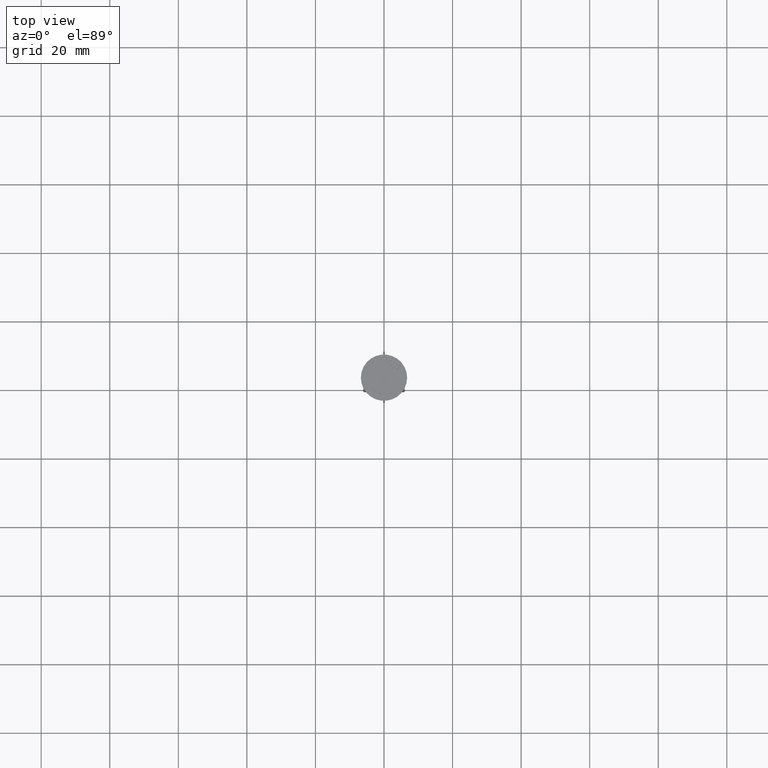
[diagram: clean part render]
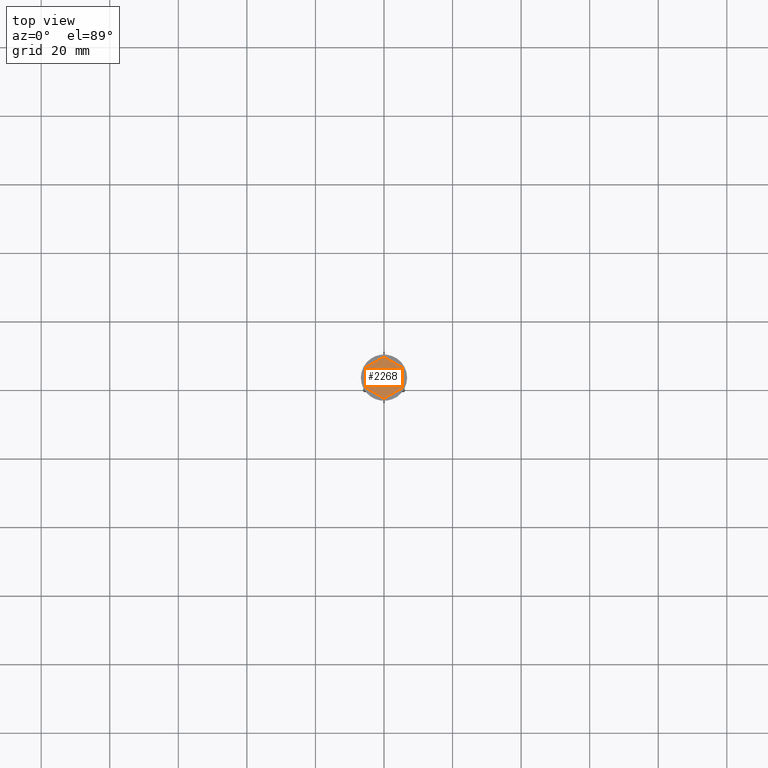
[diagram: same view with one face highlighted and labeled with its STEP entity id]
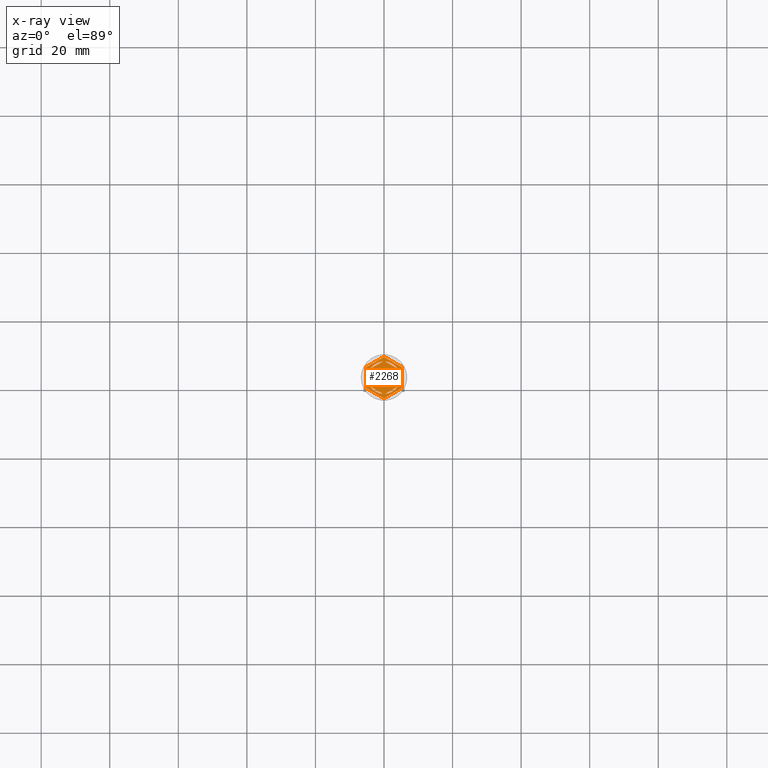
[diagram: x-ray of the same camera — body ghosted, the highlighted face saturated]
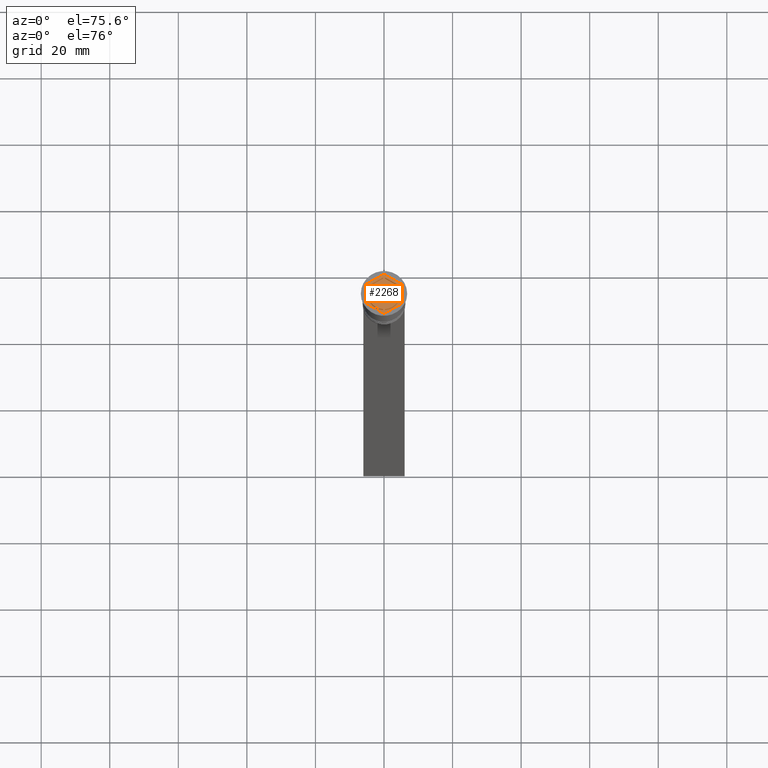
[diagram: same view with one face highlighted and labeled with its STEP entity id]
A machine part, top view. The second image highlights one B-rep face of the part: STEP entity #2268.
The next image is the same camera in x-ray: the body ghosted, the highlighted face saturated — about 0% of this face is hidden behind the body in this view.
A second angle (auxiliary view) of the same face is appended — the face is thin or edge-on in the first view.
In plain terms, the highlighted planar face has unit normal (0, 0, 1).
Its self-contained STEP definition (entity closure, byte-faithful):
#12 = LINE ( 'NONE', #1271, #2137 ) ;
#29 = EDGE_LOOP ( 'NONE', ( #1902, #47 ) ) ;
#42 = CARTESIAN_POINT ( 'NONE',  ( 4.249999999999999112, -2.453738644055910356, -1.000000000000000888 ) ) ;
#47 = ORIENTED_EDGE ( 'NONE', *, *, #877, .F. ) ;
#55 = CARTESIAN_POINT ( 'NONE',  ( 0.000000000000000000, 0.000000000000000000, -1.000000000000000000 ) ) ;
#88 = CARTESIAN_POINT ( 'NONE',  ( -3.962117307087385409, -2.619947794304041899, -1.000000000000000888 ) ) ;
#95 = VECTOR ( 'NONE', #2174, 1000.000000000000000 ) ;
#96 = DIRECTION ( 'NONE',  ( 1.000000000000000000, 0.000000000000000000, 0.000000000000000000 ) ) ;
#97 = FACE_BOUND ( 'NONE', #837, .T. ) ;
#124 = ORIENTED_EDGE ( 'NONE', *, *, #2303, .F. ) ;
#137 = DIRECTION ( 'NONE',  ( 0.000000000000000000, 0.000000000000000000, 1.000000000000000000 ) ) ;
#172 = DIRECTION ( 'NONE',  ( 1.000000000000000000, 0.000000000000000000, 0.000000000000000000 ) ) ;
#195 = EDGE_CURVE ( 'NONE', #2072, #440, #577, .T. ) ;
#211 = EDGE_CURVE ( 'NONE', #1621, #1998, #1857, .T. ) ;
#217 = VERTEX_POINT ( 'NONE', #1331 ) ;
#237 = DIRECTION ( 'NONE',  ( 0.000000000000000000, 1.000000000000000000, 0.000000000000000000 ) ) ;
#244 = DIRECTION ( 'NONE',  ( 0.000000000000000000, 0.000000000000000000, 1.000000000000000000 ) ) ;
#247 = EDGE_CURVE ( 'NONE', #217, #2072, #535, .T. ) ;
#251 = DIRECTION ( 'NONE',  ( 0.000000000000000000, 0.000000000000000000, 1.000000000000000000 ) ) ;
#272 = ORIENTED_EDGE ( 'NONE', *, *, #1885, .T. ) ;
#278 = LINE ( 'NONE', #1180, #354 ) ;
#290 = CARTESIAN_POINT ( 'NONE',  ( 5.250000000000000888, 3.031088913245536087, -1.000000000000000000 ) ) ;
#292 = DIRECTION ( 'NONE',  ( 0.000000000000000000, 1.000000000000000000, 0.000000000000000000 ) ) ;
#296 = FACE_OUTER_BOUND ( 'NONE', #969, .T. ) ;
#317 = CARTESIAN_POINT ( 'NONE',  ( 0.000000000000000000, 0.000000000000000000, -1.000000000000000000 ) ) ;
#322 = ORIENTED_EDGE ( 'NONE', *, *, #430, .T. ) ;
#327 = DIRECTION ( 'NONE',  ( 0.000000000000000000, 0.000000000000000000, 1.000000000000000000 ) ) ;
#348 = ORIENTED_EDGE ( 'NONE', *, *, #1409, .T. ) ;
#351 = VERTEX_POINT ( 'NONE', #648 ) ;
#354 = VECTOR ( 'NONE', #1208, 1000.000000000000227 ) ;
#362 = ORIENTED_EDGE ( 'NONE', *, *, #2318, .F. ) ;
#365 = CARTESIAN_POINT ( 'NONE',  ( 4.249999999999999112, -2.121320343559645938, -1.000000000000000888 ) ) ;
#374 = DIRECTION ( 'NONE',  ( -0.8660254037844385966, 0.4999999999999998890, 0.000000000000000000 ) ) ;
#397 = CIRCLE ( 'NONE', #1657, 4.750000000000000888 ) ;
#418 = EDGE_CURVE ( 'NONE', #2285, #1112, #278, .T. ) ;
#430 = EDGE_CURVE ( 'NONE', #1363, #1290, #2086, .T. ) ;
#440 = VERTEX_POINT ( 'NONE', #1947 ) ;
#441 = CARTESIAN_POINT ( 'NONE',  ( 4.250000000000000000, 2.453738644055910800, -1.000000000000000888 ) ) ;
#468 = VECTOR ( 'NONE', #292, 1000.000000000000000 ) ;
#480 = EDGE_CURVE ( 'NONE', #440, #217, #397, .T. ) ;
#483 = CARTESIAN_POINT ( 'NONE',  ( 0.000000000000000000, 0.000000000000000000, -1.000000000000000000 ) ) ;
#505 = DIRECTION ( 'NONE',  ( 0.000000000000000000, -1.000000000000000000, 0.000000000000000000 ) ) ;
#535 = CIRCLE ( 'NONE', #1854, 4.750000000000000888 ) ;
#541 = CARTESIAN_POINT ( 'NONE',  ( 0.000000000000000000, 0.000000000000000000, -1.000000000000000000 ) ) ;
#542 = EDGE_CURVE ( 'NONE', #1115, #2261, #557, .T. ) ;
#557 = LINE ( 'NONE', #2159, #1042 ) ;
#577 = LINE ( 'NONE', #1680, #645 ) ;
#596 = CARTESIAN_POINT ( 'NONE',  ( 4.249999999999999112, 2.121320343559644162, -1.000000000000000888 ) ) ;
#605 = DIRECTION ( 'NONE',  ( 0.000000000000000000, 0.000000000000000000, 1.000000000000000000 ) ) ;
#617 = DIRECTION ( 'NONE',  ( 1.000000000000000000, 0.000000000000000000, -0.000000000000000000 ) ) ;
#618 = ORIENTED_EDGE ( 'NONE', *, *, #195, .F. ) ;
#620 = DIRECTION ( 'NONE',  ( 0.8660254037844385966, 0.4999999999999999445, 0.000000000000000000 ) ) ;
#645 = VECTOR ( 'NONE', #237, 1000.000000000000000 ) ;
#648 = CARTESIAN_POINT ( 'NONE',  ( -3.962117307087385409, 2.619947794304041899, -1.000000000000000888 ) ) ;
#652 = CARTESIAN_POINT ( 'NONE',  ( -5.250000000000000888, -3.031088913245536087, -1.000000000000000000 ) ) ;
#664 = ORIENTED_EDGE ( 'NONE', *, *, #480, .F. ) ;
#685 = EDGE_CURVE ( 'NONE', #1031, #1726, #745, .T. ) ;
#687 = CARTESIAN_POINT ( 'NONE',  ( -4.250000000000000000, -2.121320343559643717, -1.000000000000000888 ) ) ;
#689 = CARTESIAN_POINT ( 'NONE',  ( -5.250000000000000888, 3.031088913245535643, -1.000000000000000000 ) ) ;
#694 = DIRECTION ( 'NONE',  ( 0.000000000000000000, 0.000000000000000000, 1.000000000000000000 ) ) ;
#712 = AXIS2_PLACEMENT_3D ( 'NONE', #541, #137, #172 ) ;
#730 = VECTOR ( 'NONE', #1352, 1000.000000000000000 ) ;
#734 = DIRECTION ( 'NONE',  ( -0.8660254037844385966, 0.5000000000000001110, 0.000000000000000000 ) ) ;
#745 = CIRCLE ( 'NONE', #1348, 4.750000000000000888 ) ;
#748 = CIRCLE ( 'NONE', #2333, 4.750000000000000888 ) ;
#773 = VERTEX_POINT ( 'NONE', #1756 ) ;
#782 = VECTOR ( 'NONE', #620, 1000.000000000000114 ) ;
#791 = VECTOR ( 'NONE', #826, 1000.000000000000000 ) ;
#796 = ORIENTED_EDGE ( 'NONE', *, *, #1471, .F. ) ;
#798 = FACE_BOUND ( 'NONE', #1138, .T. ) ;
#809 = CARTESIAN_POINT ( 'NONE',  ( 8.729740977282959667E-16, -6.062177826491071286, -1.000000000000000000 ) ) ;
#826 = DIRECTION ( 'NONE',  ( 0.8660254037844387076, -0.4999999999999998335, 0.000000000000000000 ) ) ;
#837 = EDGE_LOOP ( 'NONE', ( #1933, #1320 ) ) ;
#876 = ORIENTED_EDGE ( 'NONE', *, *, #924, .F. ) ;
#877 = EDGE_CURVE ( 'NONE', #351, #773, #1635, .T. ) ;
#924 = EDGE_CURVE ( 'NONE', #2031, #1685, #12, .T. ) ;
#965 = ORIENTED_EDGE ( 'NONE', *, *, #1272, .T. ) ;
#969 = EDGE_LOOP ( 'NONE', ( #965, #972, #272, #1859, #348, #322 ) ) ;
#970 = DIRECTION ( 'NONE',  ( 1.000000000000000000, 0.000000000000000000, 0.000000000000000000 ) ) ;
#972 = ORIENTED_EDGE ( 'NONE', *, *, #418, .T. ) ;
#975 = EDGE_CURVE ( 'NONE', #1998, #1621, #1125, .T. ) ;
#978 = CARTESIAN_POINT ( 'NONE',  ( 8.729740977282959667E-16, -6.062177826491071286, -1.000000000000000000 ) ) ;
#1009 = VECTOR ( 'NONE', #2324, 1000.000000000000000 ) ;
#1031 = VERTEX_POINT ( 'NONE', #1860 ) ;
#1042 = VECTOR ( 'NONE', #1790, 1000.000000000000000 ) ;
#1112 = VERTEX_POINT ( 'NONE', #1234 ) ;
#1115 = VERTEX_POINT ( 'NONE', #652 ) ;
#1125 = CIRCLE ( 'NONE', #1238, 4.750000000000000888 ) ;
#1127 = DIRECTION ( 'NONE',  ( 1.000000000000000000, 0.000000000000000000, 0.000000000000000000 ) ) ;
#1137 = LINE ( 'NONE', #1491, #1875 ) ;
#1138 = EDGE_LOOP ( 'NONE', ( #796, #362 ) ) ;
#1149 = CARTESIAN_POINT ( 'NONE',  ( 0.000000000000000000, 0.000000000000000000, -1.000000000000000000 ) ) ;
#1164 = CARTESIAN_POINT ( 'NONE',  ( 0.000000000000000000, 0.000000000000000000, -1.000000000000000000 ) ) ;
#1180 = CARTESIAN_POINT ( 'NONE',  ( 0.000000000000000000, 6.062177826491072175, -1.000000000000000000 ) ) ;
#1199 = AXIS2_PLACEMENT_3D ( 'NONE', #483, #327, #1752 ) ;
#1204 = EDGE_CURVE ( 'NONE', #773, #351, #748, .T. ) ;
#1208 = DIRECTION ( 'NONE',  ( -0.8660254037844385966, -0.5000000000000000000, 0.000000000000000000 ) ) ;
#1234 = CARTESIAN_POINT ( 'NONE',  ( -5.250000000000000888, 3.031088913245535643, -1.000000000000000000 ) ) ;
#1238 = AXIS2_PLACEMENT_3D ( 'NONE', #1164, #605, #96 ) ;
#1271 = CARTESIAN_POINT ( 'NONE',  ( -4.250000000000000000, -2.453738644055909912, -1.000000000000000888 ) ) ;
#1272 = EDGE_CURVE ( 'NONE', #1290, #2285, #1137, .T. ) ;
#1290 = VERTEX_POINT ( 'NONE', #290 ) ;
#1320 = ORIENTED_EDGE ( 'NONE', *, *, #211, .F. ) ;
#1331 = CARTESIAN_POINT ( 'NONE',  ( -4.750000000000000888, 0.000000000000000000, -1.000000000000000000 ) ) ;
#1339 = CARTESIAN_POINT ( 'NONE',  ( 5.250000000000000888, -3.031088913245536087, -1.000000000000000000 ) ) ;
#1348 = AXIS2_PLACEMENT_3D ( 'NONE', #317, #2311, #1942 ) ;
#1352 = DIRECTION ( 'NONE',  ( -1.767428939690775055E-16, -1.000000000000000000, 0.000000000000000000 ) ) ;
#1363 = VERTEX_POINT ( 'NONE', #1339 ) ;
#1377 = FACE_BOUND ( 'NONE', #2273, .T. ) ;
#1409 = EDGE_CURVE ( 'NONE', #2261, #1363, #1899, .T. ) ;
#1471 = EDGE_CURVE ( 'NONE', #2277, #2087, #1728, .T. ) ;
#1491 = CARTESIAN_POINT ( 'NONE',  ( 5.250000000000000888, 3.031088913245536087, -1.000000000000000000 ) ) ;
#1533 = FACE_BOUND ( 'NONE', #2207, .T. ) ;
#1547 = FACE_BOUND ( 'NONE', #1931, .T. ) ;
#1602 = CARTESIAN_POINT ( 'NONE',  ( -8.673617379884035472E-16, -4.907477288111819824, -1.000000000000000888 ) ) ;
#1621 = VERTEX_POINT ( 'NONE', #596 ) ;
#1635 = LINE ( 'NONE', #2025, #95 ) ;
#1657 = AXIS2_PLACEMENT_3D ( 'NONE', #1796, #694, #2315 ) ;
#1680 = CARTESIAN_POINT ( 'NONE',  ( -4.250000000000000000, 2.453738644055909468, -1.000000000000000888 ) ) ;
#1685 = VERTEX_POINT ( 'NONE', #88 ) ;
#1691 = ORIENTED_EDGE ( 'NONE', *, *, #247, .F. ) ;
#1722 = ORIENTED_EDGE ( 'NONE', *, *, #1829, .F. ) ;
#1726 = VERTEX_POINT ( 'NONE', #1939 ) ;
#1728 = CIRCLE ( 'NONE', #712, 4.750000000000000888 ) ;
#1752 = DIRECTION ( 'NONE',  ( 1.000000000000000000, 0.000000000000000000, 0.000000000000000000 ) ) ;
#1756 = CARTESIAN_POINT ( 'NONE',  ( -0.2878826929126160894, 4.741268137863686505, -1.000000000000000888 ) ) ;
#1790 = DIRECTION ( 'NONE',  ( 0.8660254037844387076, -0.4999999999999998335, 0.000000000000000000 ) ) ;
#1796 = CARTESIAN_POINT ( 'NONE',  ( 0.000000000000000000, 0.000000000000000000, -1.000000000000000000 ) ) ;
#1811 = CARTESIAN_POINT ( 'NONE',  ( 3.962117307087384521, -2.619947794304042787, -1.000000000000000888 ) ) ;
#1813 = VECTOR ( 'NONE', #505, 1000.000000000000000 ) ;
#1829 = EDGE_CURVE ( 'NONE', #1726, #1031, #2237, .T. ) ;
#1854 = AXIS2_PLACEMENT_3D ( 'NONE', #1149, #244, #970 ) ;
#1857 = LINE ( 'NONE', #42, #730 ) ;
#1859 = ORIENTED_EDGE ( 'NONE', *, *, #542, .T. ) ;
#1860 = CARTESIAN_POINT ( 'NONE',  ( 3.962117307087384521, 2.619947794304043232, -1.000000000000000888 ) ) ;
#1863 = DIRECTION ( 'NONE',  ( 0.000000000000000000, 0.000000000000000000, 1.000000000000000000 ) ) ;
#1872 = CARTESIAN_POINT ( 'NONE',  ( 0.000000000000000000, 0.000000000000000000, -1.000000000000000000 ) ) ;
#1875 = VECTOR ( 'NONE', #374, 1000.000000000000227 ) ;
#1884 = CARTESIAN_POINT ( 'NONE',  ( 0.2878826929126150347, -4.741268137863686505, -1.000000000000000888 ) ) ;
#1885 = EDGE_CURVE ( 'NONE', #1112, #1115, #1989, .T. ) ;
#1899 = LINE ( 'NONE', #978, #782 ) ;
#1902 = ORIENTED_EDGE ( 'NONE', *, *, #1204, .F. ) ;
#1917 = FACE_BOUND ( 'NONE', #29, .T. ) ;
#1931 = EDGE_LOOP ( 'NONE', ( #664, #618, #1691 ) ) ;
#1933 = ORIENTED_EDGE ( 'NONE', *, *, #975, .F. ) ;
#1939 = CARTESIAN_POINT ( 'NONE',  ( 0.2878826929126145906, 4.741268137863685617, -1.000000000000000888 ) ) ;
#1942 = DIRECTION ( 'NONE',  ( 1.000000000000000000, 0.000000000000000000, 0.000000000000000000 ) ) ;
#1947 = CARTESIAN_POINT ( 'NONE',  ( -4.250000000000000000, 2.121320343559643717, -1.000000000000000888 ) ) ;
#1966 = CARTESIAN_POINT ( 'NONE',  ( 0.000000000000000000, 6.062177826491072175, -1.000000000000000000 ) ) ;
#1989 = LINE ( 'NONE', #689, #1813 ) ;
#1998 = VERTEX_POINT ( 'NONE', #365 ) ;
#2025 = CARTESIAN_POINT ( 'NONE',  ( 4.336808689942017736E-16, 4.907477288111819824, -1.000000000000000888 ) ) ;
#2031 = VERTEX_POINT ( 'NONE', #2140 ) ;
#2072 = VERTEX_POINT ( 'NONE', #687 ) ;
#2086 = LINE ( 'NONE', #2264, #468 ) ;
#2087 = VERTEX_POINT ( 'NONE', #1811 ) ;
#2102 = AXIS2_PLACEMENT_3D ( 'NONE', #1872, #251, #617 ) ;
#2104 = LINE ( 'NONE', #1602, #1009 ) ;
#2137 = VECTOR ( 'NONE', #734, 1000.000000000000000 ) ;
#2140 = CARTESIAN_POINT ( 'NONE',  ( -0.2878826929126160894, -4.741268137863686505, -1.000000000000000888 ) ) ;
#2159 = CARTESIAN_POINT ( 'NONE',  ( -5.250000000000000888, -3.031088913245536087, -1.000000000000000000 ) ) ;
#2174 = DIRECTION ( 'NONE',  ( 0.8660254037844385966, 0.5000000000000001110, -0.000000000000000000 ) ) ;
#2183 = CIRCLE ( 'NONE', #1199, 4.750000000000000888 ) ;
#2207 = EDGE_LOOP ( 'NONE', ( #2274, #1722 ) ) ;
#2237 = LINE ( 'NONE', #441, #791 ) ;
#2259 = PLANE ( 'NONE',  #2102 ) ;
#2261 = VERTEX_POINT ( 'NONE', #809 ) ;
#2264 = CARTESIAN_POINT ( 'NONE',  ( 5.250000000000000888, -3.031088913245536087, -1.000000000000000000 ) ) ;
#2268 = ADVANCED_FACE ( 'NONE', ( #1533, #97, #798, #1377, #1547, #1917, #296 ), #2259, .T. ) ;
#2273 = EDGE_LOOP ( 'NONE', ( #124, #876 ) ) ;
#2274 = ORIENTED_EDGE ( 'NONE', *, *, #685, .F. ) ;
#2277 = VERTEX_POINT ( 'NONE', #1884 ) ;
#2285 = VERTEX_POINT ( 'NONE', #1966 ) ;
#2303 = EDGE_CURVE ( 'NONE', #1685, #2031, #2183, .T. ) ;
#2311 = DIRECTION ( 'NONE',  ( 0.000000000000000000, 0.000000000000000000, 1.000000000000000000 ) ) ;
#2315 = DIRECTION ( 'NONE',  ( 1.000000000000000000, 0.000000000000000000, 0.000000000000000000 ) ) ;
#2318 = EDGE_CURVE ( 'NONE', #2087, #2277, #2104, .T. ) ;
#2324 = DIRECTION ( 'NONE',  ( -0.8660254037844387076, -0.4999999999999999445, 0.000000000000000000 ) ) ;
#2333 = AXIS2_PLACEMENT_3D ( 'NONE', #55, #1863, #1127 ) ;